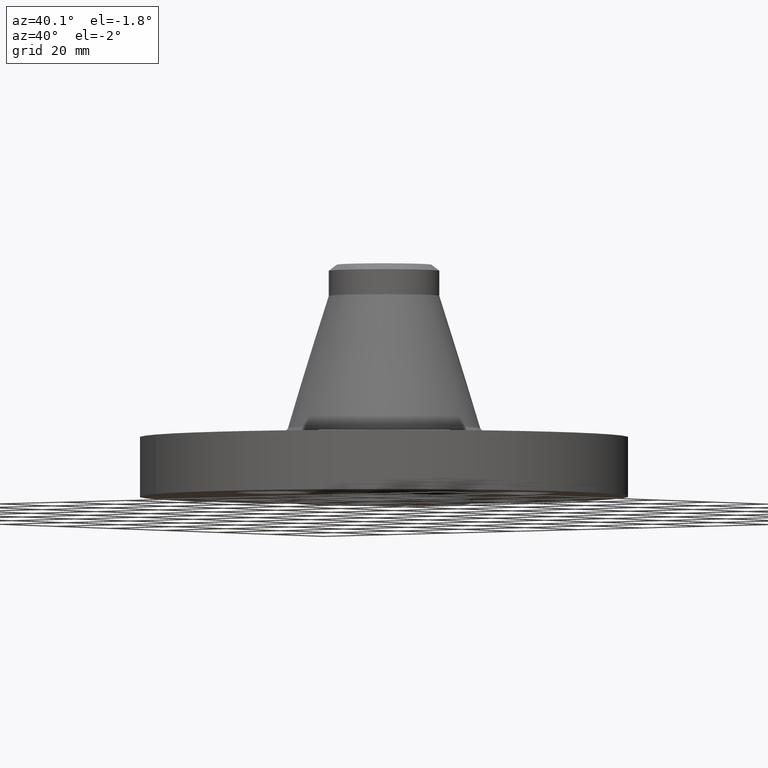
[diagram: clean part render]
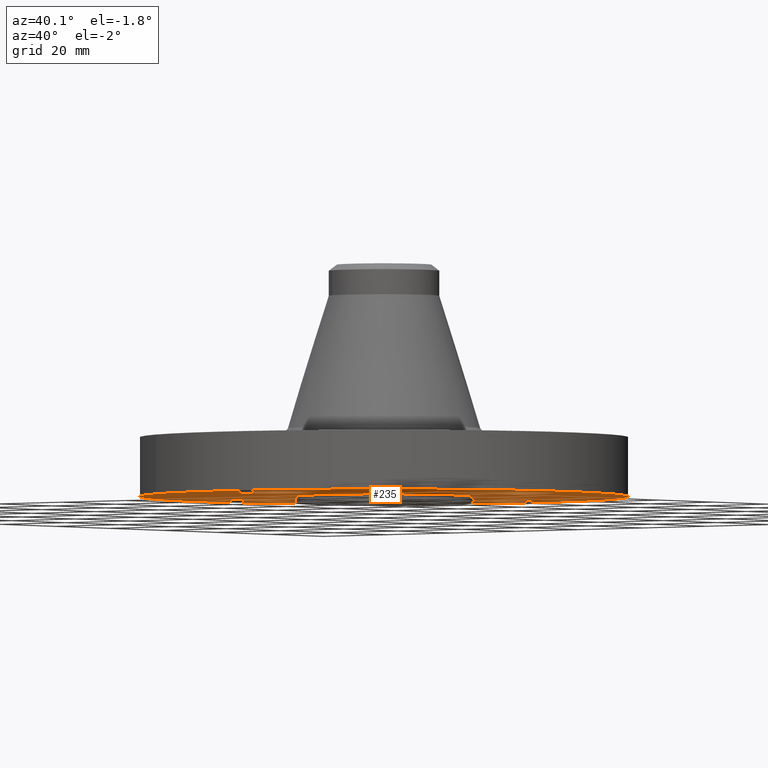
[diagram: same view with one face highlighted and labeled with its STEP entity id]
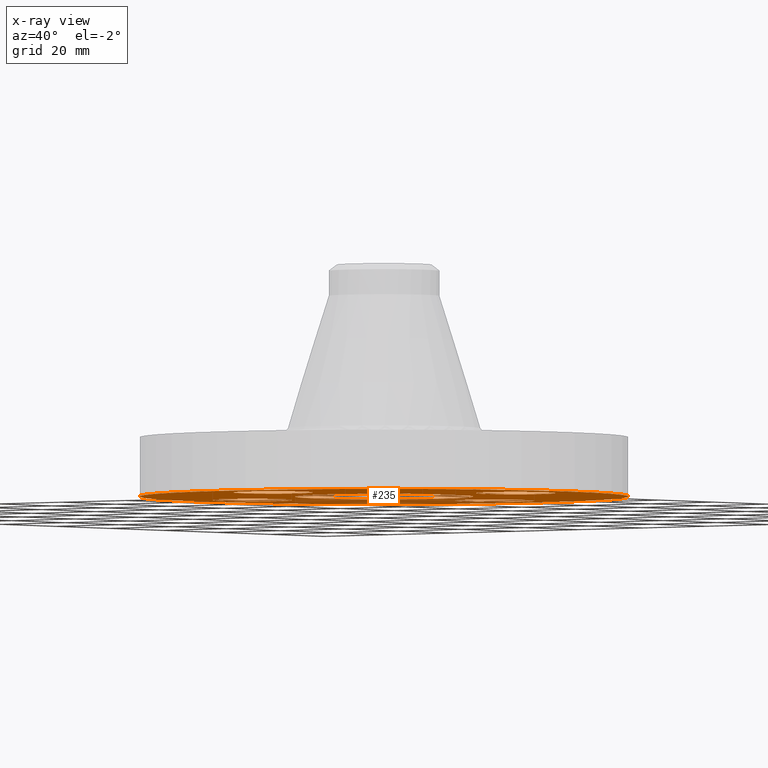
[diagram: x-ray of the same camera — body ghosted, the highlighted face saturated]
A machine part, auxiliary view. The second image highlights one B-rep face of the part: STEP entity #235.
The next image is the same camera in x-ray: the body ghosted, the highlighted face saturated — about 20% of this face is hidden behind the body in this view.
In plain terms, the highlighted planar face has unit normal (0, 0, -1).
Its self-contained STEP definition (entity closure, byte-faithful):
#114=AXIS2_PLACEMENT_3D('Circle Axis2P3D',#112,#113,$) ;
#139=AXIS2_PLACEMENT_3D('Plane Axis2P3D',#136,#137,#138) ;
#143=AXIS2_PLACEMENT_3D('Circle Axis2P3D',#141,#142,$) ;
#152=AXIS2_PLACEMENT_3D('Circle Axis2P3D',#150,#151,$) ;
#165=AXIS2_PLACEMENT_3D('Circle Axis2P3D',#163,#164,$) ;
#174=AXIS2_PLACEMENT_3D('Circle Axis2P3D',#172,#173,$) ;
#183=AXIS2_PLACEMENT_3D('Circle Axis2P3D',#181,#182,$) ;
#192=AXIS2_PLACEMENT_3D('Circle Axis2P3D',#190,#191,$) ;
#201=AXIS2_PLACEMENT_3D('Circle Axis2P3D',#199,#200,$) ;
#210=AXIS2_PLACEMENT_3D('Circle Axis2P3D',#208,#209,$) ;
#219=AXIS2_PLACEMENT_3D('Circle Axis2P3D',#217,#218,$) ;
#228=AXIS2_PLACEMENT_3D('Circle Axis2P3D',#226,#227,$) ;
#44=CARTESIAN_POINT('Vertex',(1.29590653932,0.179784576995,0.)) ;
#50=CARTESIAN_POINT('Control Point',(1.2959065393,0.179784576977,-2.54423170692E-028)) ;
#51=CARTESIAN_POINT('Control Point',(1.32414703461,0.231478456903,4.23440809975E-013)) ;
#52=CARTESIAN_POINT('Control Point',(1.36253759951,0.27762732854,8.4688161995E-013)) ;
#53=CARTESIAN_POINT('Control Point',(1.40963466834,0.315564920645,1.27033991375E-012)) ;
#54=CARTESIAN_POINT('Control Point',(1.51616640576,0.370929207243,2.1172215337E-012)) ;
#55=CARTESIAN_POINT('Control Point',(1.63572322347,0.38190110985,2.96410315365E-012)) ;
#56=CARTESIAN_POINT('Control Point',(1.69585180885,0.375424381748,3.38756144745E-012)) ;
#57=CARTESIAN_POINT('Control Point',(1.81032958528,0.339243530298,4.2344430674E-012)) ;
#58=CARTESIAN_POINT('Control Point',(1.90262732855,0.262462400496,5.08132468735E-012)) ;
#59=CARTESIAN_POINT('Control Point',(1.94056492066,0.215365331668,5.50478298115E-012)) ;
#60=CARTESIAN_POINT('Control Point',(1.99592920725,0.108833594252,6.3516646011E-012)) ;
#61=CARTESIAN_POINT('Control Point',(2.00690110986,-0.0107232234562,7.19854622105E-012)) ;
#62=CARTESIAN_POINT('Control Point',(2.00042438176,-0.0708518088378,7.62200451485E-012)) ;
#63=CARTESIAN_POINT('Control Point',(1.98233395603,-0.128090697051,8.04544532483E-012)) ;
#64=CARTESIAN_POINT('Control Point',(1.95409346072,-0.179784576977,8.4688861348E-012)) ;
#65=CARTESIAN_POINT('Vertex',(1.95409346072,-0.179784576977,8.4688861348E-012)) ;
#112=CARTESIAN_POINT('Axis2P3D Location',(1.62500000001,0.,8.4688861348E-012)) ;
#136=CARTESIAN_POINT('Axis2P3D Location',(0.,0.845000000003,0.)) ;
#141=CARTESIAN_POINT('Axis2P3D Location',(-1.28113093187E-011,-7.89373815657E-012,0.)) ;
#145=CARTESIAN_POINT('Vertex',(-1.10747299418,-2.02721571797,4.10632158198E-012)) ;
#147=CARTESIAN_POINT('Vertex',(1.10747299418,2.02721571798,4.10632158198E-012)) ;
#150=CARTESIAN_POINT('Axis2P3D Location',(1.28113093187E-011,-2.18922692747E-011,0.)) ;
#163=CARTESIAN_POINT('Axis2P3D Location',(-4.36655086542E-011,8.96137057823E-012,0.)) ;
#167=CARTESIAN_POINT('Vertex',(0.405114580122,0.741557264796,0.)) ;
#169=CARTESIAN_POINT('Vertex',(-0.405114580122,-0.7415572648,4.10632158198E-012)) ;
#172=CARTESIAN_POINT('Axis2P3D Location',(1.28118688012E-011,-2.18921294041E-011,0.)) ;
#181=CARTESIAN_POINT('Axis2P3D Location',(3.49676543189E-017,-1.62499999999,0.)) ;
#185=CARTESIAN_POINT('Vertex',(0.179784576973,-1.2959065393,0.)) ;
#187=CARTESIAN_POINT('Vertex',(-0.179784576973,-1.95409346069,0.)) ;
#190=CARTESIAN_POINT('Axis2P3D Location',(-3.49676543189E-017,-1.62499999999,0.)) ;
#199=CARTESIAN_POINT('Axis2P3D Location',(-1.62500000001,2.17732393794E-011,0.)) ;
#203=CARTESIAN_POINT('Vertex',(-1.29590653932,-0.179784576951,0.)) ;
#205=CARTESIAN_POINT('Vertex',(-1.95409346071,0.179784576995,0.)) ;
#208=CARTESIAN_POINT('Axis2P3D Location',(-1.62500000001,2.17732393794E-011,0.)) ;
#217=CARTESIAN_POINT('Axis2P3D Location',(1.28118688012E-011,1.62499999999,0.)) ;
#221=CARTESIAN_POINT('Vertex',(-0.179784576973,1.29590653927,0.)) ;
#223=CARTESIAN_POINT('Vertex',(0.179784576973,1.95409346073,0.)) ;
#226=CARTESIAN_POINT('Axis2P3D Location',(-4.36653687836E-011,1.62500000002,0.)) ;
#113=DIRECTION('Axis2P3D Direction',(0.,-0.,-0.0393700787402)) ;
#137=DIRECTION('Axis2P3D Direction',(0.,0.,-0.0393700787402)) ;
#138=DIRECTION('Axis2P3D XDirection',(0.0393700787402,0.,0.)) ;
#142=DIRECTION('Axis2P3D Direction',(0.,0.,-0.0393700787402)) ;
#151=DIRECTION('Axis2P3D Direction',(0.,0.,-0.0393700787402)) ;
#164=DIRECTION('Axis2P3D Direction',(0.,0.,-0.0393700787402)) ;
#173=DIRECTION('Axis2P3D Direction',(0.,0.,-0.0393700787402)) ;
#182=DIRECTION('Axis2P3D Direction',(0.,0.,-0.0393700787402)) ;
#191=DIRECTION('Axis2P3D Direction',(0.,0.,-0.0393700787402)) ;
#200=DIRECTION('Axis2P3D Direction',(0.,0.,-0.0393700787402)) ;
#209=DIRECTION('Axis2P3D Direction',(0.,0.,-0.0393700787402)) ;
#218=DIRECTION('Axis2P3D Direction',(0.,0.,-0.0393700787402)) ;
#227=DIRECTION('Axis2P3D Direction',(0.,0.,-0.0393700787402)) ;
#156=ORIENTED_EDGE('',*,*,#149,.T.) ;
#157=ORIENTED_EDGE('',*,*,#154,.T.) ;
#160=ORIENTED_EDGE('',*,*,#116,.F.) ;
#161=ORIENTED_EDGE('',*,*,#67,.F.) ;
#178=ORIENTED_EDGE('',*,*,#171,.F.) ;
#179=ORIENTED_EDGE('',*,*,#176,.F.) ;
#196=ORIENTED_EDGE('',*,*,#189,.F.) ;
#197=ORIENTED_EDGE('',*,*,#194,.F.) ;
#214=ORIENTED_EDGE('',*,*,#207,.F.) ;
#215=ORIENTED_EDGE('',*,*,#212,.F.) ;
#232=ORIENTED_EDGE('',*,*,#225,.F.) ;
#233=ORIENTED_EDGE('',*,*,#230,.F.) ;
#162=FACE_BOUND('',#159,.T.) ;
#180=FACE_BOUND('',#177,.T.) ;
#198=FACE_BOUND('',#195,.T.) ;
#216=FACE_BOUND('',#213,.T.) ;
#234=FACE_BOUND('',#231,.T.) ;
#235=ADVANCED_FACE('PartBody',(#158,#162,#180,#198,#216,#234),#140,.T.) ;
#49=B_SPLINE_CURVE_WITH_KNOTS('',5,(#50,#51,#52,#53,#54,#55,#56,#57,#58,#59,#60,#61,#62,#63,#64),.UNSPECIFIED.,.F.,.U.,(6,3,3,3,6),(-14.9618350128,-7.48091750638,0.,7.48091750638,14.9618350128),.UNSPECIFIED.) ;
#115=CIRCLE('generated circle',#114,0.375000000001) ;
#144=CIRCLE('generated circle',#143,2.31000000001) ;
#153=CIRCLE('generated circle',#152,2.31000000001) ;
#166=CIRCLE('generated circle',#165,0.845000000012) ;
#175=CIRCLE('generated circle',#174,0.845000000012) ;
#184=CIRCLE('generated circle',#183,0.374999999988) ;
#193=CIRCLE('generated circle',#192,0.374999999988) ;
#202=CIRCLE('generated circle',#201,0.374999999988) ;
#211=CIRCLE('generated circle',#210,0.374999999988) ;
#220=CIRCLE('generated circle',#219,0.375000000021) ;
#229=CIRCLE('generated circle',#228,0.375000000021) ;
#67=EDGE_CURVE('',#45,#66,#49,.T.) ;
#116=EDGE_CURVE('',#66,#45,#115,.T.) ;
#149=EDGE_CURVE('',#146,#148,#144,.T.) ;
#154=EDGE_CURVE('',#148,#146,#153,.T.) ;
#171=EDGE_CURVE('',#168,#170,#166,.T.) ;
#176=EDGE_CURVE('',#170,#168,#175,.T.) ;
#189=EDGE_CURVE('',#186,#188,#184,.T.) ;
#194=EDGE_CURVE('',#188,#186,#193,.T.) ;
#207=EDGE_CURVE('',#204,#206,#202,.T.) ;
#212=EDGE_CURVE('',#206,#204,#211,.T.) ;
#225=EDGE_CURVE('',#222,#224,#220,.T.) ;
#230=EDGE_CURVE('',#224,#222,#229,.T.) ;
#155=EDGE_LOOP('',(#156,#157)) ;
#159=EDGE_LOOP('',(#160,#161)) ;
#177=EDGE_LOOP('',(#178,#179)) ;
#195=EDGE_LOOP('',(#196,#197)) ;
#213=EDGE_LOOP('',(#214,#215)) ;
#231=EDGE_LOOP('',(#232,#233)) ;
#158=FACE_OUTER_BOUND('',#155,.T.) ;
#140=PLANE('',#139) ;
#45=VERTEX_POINT('',#44) ;
#66=VERTEX_POINT('',#65) ;
#146=VERTEX_POINT('',#145) ;
#148=VERTEX_POINT('',#147) ;
#168=VERTEX_POINT('',#167) ;
#170=VERTEX_POINT('',#169) ;
#186=VERTEX_POINT('',#185) ;
#188=VERTEX_POINT('',#187) ;
#204=VERTEX_POINT('',#203) ;
#206=VERTEX_POINT('',#205) ;
#222=VERTEX_POINT('',#221) ;
#224=VERTEX_POINT('',#223) ;